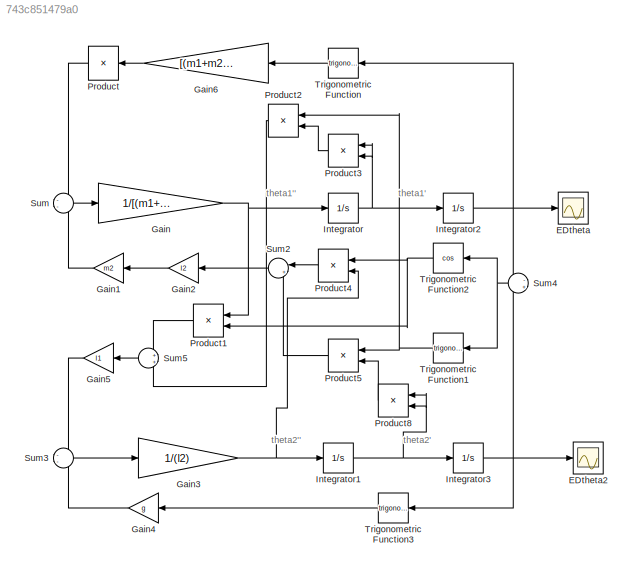
MODEL slx_743c851479a0
KIND model
CONFIG AbsTol = auto
CONFIG EnableMultiTasking = off
CONFIG FixedStep = auto
CONFIG MaxStep = 0.01
CONFIG MinStep = auto
CONFIG RelTol = 1e-3
CONFIG SampleTimeConstraint = Unconstrained
CONFIG SolverName = VariableStepAuto
CONFIG StartTime = 0.0
CONFIG StopTime = 10
BLOCK [Scope] EDtheta
  Floating = off
  NumInputPorts = 1
  ScopeSpecificationString = Simulink.scopes.TimeScopeBlockCfg('CurrentConfiguration', extmgr.ConfigurationSet(extmgr.Configuration('Core','General UI',true),extmgr.Configuration('Core','Source UI',true),extmgr.Configuration('Sources','WiredSimulink',true,'DataLoggingVariableName','ScopeData1'),extmgr.Configuration('Visuals','Time Domain',true,'SerializedDisplays',{struct('MinYLimReal','-0.38617','MaxYLimReal','0.38337','YLab...<+1443ch>
BLOCK [Scope] EDtheta2
  Floating = off
  NumInputPorts = 1
  ScopeSpecificationString = Simulink.scopes.TimeScopeBlockCfg('CurrentConfiguration', extmgr.ConfigurationSet(extmgr.Configuration('Core','General UI',true),extmgr.Configuration('Core','Source UI',true),extmgr.Configuration('Sources','WiredSimulink',true),extmgr.Configuration('Visuals','Time Domain',true,'SerializedDisplays',{struct('MinYLimReal','-0.76297','MaxYLimReal','0.76351','YLabelReal','','MinYLimMag','0.00000','MaxY...<+1404ch>
BLOCK [Gain] Gain
  Gain = 1/[(m1+m2)*l1]
BLOCK [Gain] Gain1
  Gain = m2
  NameLocation = top
BLOCK [Gain] Gain2
  Gain = l2
  NameLocation = top
BLOCK [Gain] Gain3
  Gain = 1/(l2)
BLOCK [Gain] Gain4
  Gain = g
  NameLocation = top
BLOCK [Gain] Gain5
  Gain = l1
  NameLocation = top
BLOCK [Gain] Gain6
  Gain = [(m1+m2)*g]
  NameLocation = top
BLOCK [Integrator] Integrator
BLOCK [Integrator] Integrator1
BLOCK [Integrator] Integrator2
BLOCK [Integrator] Integrator3
  InitialCondition = (35*pi)/180
BLOCK [Product] Product
  Inputs = 1
  NameLocation = top
BLOCK [Product] Product1
BLOCK [Product] Product2
  NameLocation = top
BLOCK [Product] Product3
  NameLocation = top
BLOCK [Product] Product4
  NameLocation = top
BLOCK [Product] Product5
BLOCK [Product] Product8
BLOCK [Sum] Sum
  Inputs = --
BLOCK [Sum] Sum2
  Inputs = |+-
  NameLocation = top
BLOCK [Sum] Sum3
  Inputs = --
BLOCK [Sum] Sum4
  Inputs = -+
  NameLocation = top
BLOCK [Sum] Sum5
  NameLocation = top
BLOCK [Trigonometry] Trigonometric Function
  NameLocation = top
BLOCK [Trigonometry] Trigonometric Function1
  NameLocation = top
BLOCK [Trigonometry] Trigonometric Function2
  NameLocation = top
  Operator = cos
BLOCK [Trigonometry] Trigonometric Function3
  NameLocation = top
ANNOTATION (root): theta1''
ANNOTATION (root): theta2''
ANNOTATION (root): theta1'
ANNOTATION (root): theta2'
LINE Gain1:1 -> Sum:2
LINE Gain2:1 -> Gain1:1
NET Gain3:1 -> Integrator1:1, Product4:2
LINE Gain4:1 -> Sum3:2
LINE Gain5:1 -> Sum3:1
LINE Gain6:1 -> Product:1
NET Gain:1 -> Integrator:1, Product1:1
NET Integrator1:1 -> Integrator3:1, Product8:1, Product8:2
NET Integrator2:1 -> EDtheta:1, Sum4:1, Trigonometric Function:1
NET Integrator3:1 -> EDtheta2:1, Sum4:2, Trigonometric Function3:1
NET Integrator:1 -> Integrator2:1, Product3:1, Product3:2
LINE Product1:1 -> Sum5:1
LINE Product2:1 -> Sum5:2
LINE Product3:1 -> Product2:2
LINE Product4:1 -> Sum2:1
LINE Product5:1 -> Sum2:2
LINE Product8:1 -> Product5:2
LINE Product:1 -> Sum:1
LINE Sum2:1 -> Gain2:1
LINE Sum3:1 -> Gain3:1
NET Sum4:1 -> Trigonometric Function1:1, Trigonometric Function2:1
LINE Sum5:1 -> Gain5:1
LINE Sum:1 -> Gain:1
NET Trigonometric Function1:1 -> Product2:1, Product5:1
NET Trigonometric Function2:1 -> Product1:2, Product4:1
LINE Trigonometric Function3:1 -> Gain4:1
LINE Trigonometric Function:1 -> Gain6:1
note: NET lines group one-source signal fan-out (src -> all destinations, sorted); 1:1 wires keep LINE
